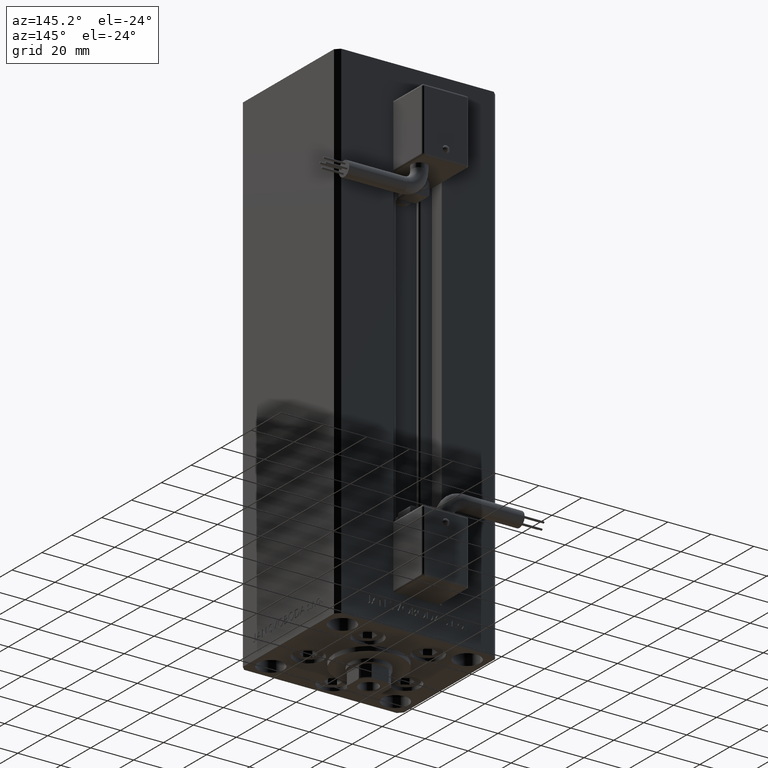
[diagram: clean part render]
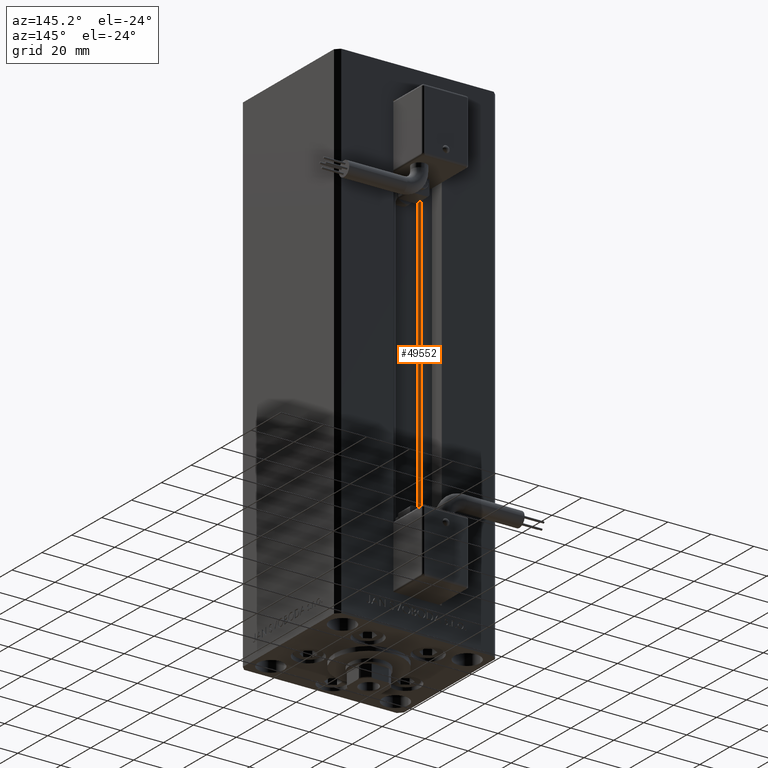
[diagram: same view with one face highlighted and labeled with its STEP entity id]
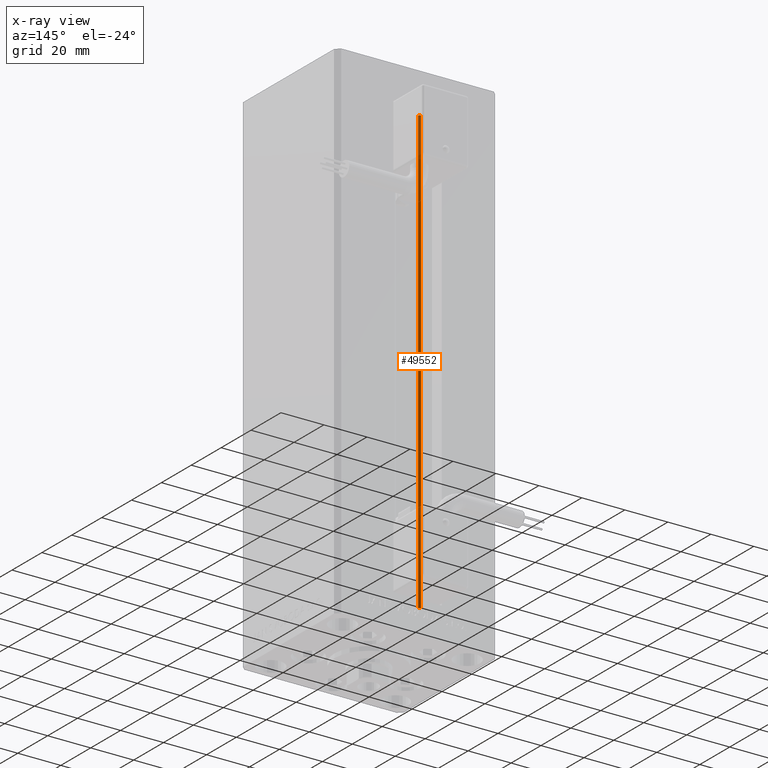
[diagram: x-ray of the same camera — body ghosted, the highlighted face saturated]
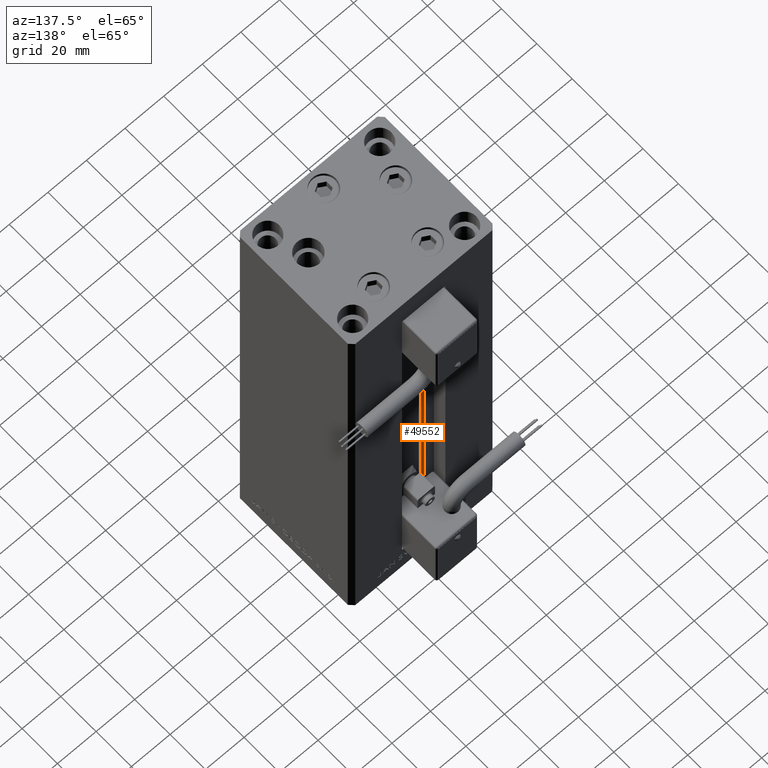
[diagram: same view with one face highlighted and labeled with its STEP entity id]
A machine part, auxiliary view. The second image highlights one B-rep face of the part: STEP entity #49552.
The next image is the same camera in x-ray: the body ghosted, the highlighted face saturated — about 13% of this face is hidden behind the body in this view.
A second angle (auxiliary view) of the same face is appended — the face is thin or edge-on in the first view.
In plain terms, the highlighted cylindrical surface (edge-blend (fillet) strip) has radius 0.9333 mm, axis along (0, 0, 1).
Its self-contained STEP definition (entity closure, byte-faithful):
#1672 = DIRECTION ( 'NONE',  ( -0.000000000000000000, -0.000000000000000000, 1.000000000000000000 ) ) ;
#2503 = DIRECTION ( 'NONE',  ( 1.000000000000000000, 0.000000000000000000, 0.000000000000000000 ) ) ;
#2633 = VERTEX_POINT ( 'NONE', #2888 ) ;
#2888 = CARTESIAN_POINT ( 'NONE',  ( -6.183333333334001480, 25.99999999999999289, 0.000000000000000000 ) ) ;
#4124 = VECTOR ( 'NONE', #42068, 1000.000000000000000 ) ;
#8800 = DIRECTION ( 'NONE',  ( -0.000000000000000000, -0.000000000000000000, 1.000000000000000000 ) ) ;
#9797 = EDGE_CURVE ( 'NONE', #2633, #40842, #17827, .T. ) ;
#9839 = DIRECTION ( 'NONE',  ( -0.000000000000000000, -0.000000000000000000, -1.000000000000000000 ) ) ;
#10555 = EDGE_CURVE ( 'NONE', #40842, #48999, #43824, .T. ) ;
#16902 = CYLINDRICAL_SURFACE ( 'NONE', #28194, 0.9333333333340008142 ) ;
#17813 = CARTESIAN_POINT ( 'NONE',  ( -6.183333333334001480, 25.99999999999999289, 0.000000000000000000 ) ) ;
#17827 = CIRCLE ( 'NONE', #47609, 0.9333333333340008142 ) ;
#17950 = DIRECTION ( 'NONE',  ( 1.000000000000000000, 0.000000000000000000, 0.000000000000000000 ) ) ;
#18067 = EDGE_CURVE ( 'NONE', #43311, #48999, #20853, .T. ) ;
#18119 = CARTESIAN_POINT ( 'NONE',  ( -6.183333333334001480, 25.06666666666599141, 0.000000000000000000 ) ) ;
#20809 = CARTESIAN_POINT ( 'NONE',  ( -5.250000000000000000, 25.06666666666599141, 0.000000000000000000 ) ) ;
#20853 = CIRCLE ( 'NONE', #23400, 0.9333333333340008142 ) ;
#23400 = AXIS2_PLACEMENT_3D ( 'NONE', #30259, #34013, #2503 ) ;
#26763 = ORIENTED_EDGE ( 'NONE', *, *, #10555, .F. ) ;
#28049 = ORIENTED_EDGE ( 'NONE', *, *, #18067, .T. ) ;
#28194 = AXIS2_PLACEMENT_3D ( 'NONE', #38224, #1672, #17950 ) ;
#30259 = CARTESIAN_POINT ( 'NONE',  ( -6.183333333334001480, 25.06666666666599141, 206.0000000000000000 ) ) ;
#30380 = DIRECTION ( 'NONE',  ( 1.000000000000000000, 0.000000000000000000, 0.000000000000000000 ) ) ;
#30855 = EDGE_CURVE ( 'NONE', #2633, #43311, #52492, .T. ) ;
#32157 = CARTESIAN_POINT ( 'NONE',  ( -5.250000000000000000, 25.06666666666599141, 0.000000000000000000 ) ) ;
#33183 = FACE_OUTER_BOUND ( 'NONE', #52297, .T. ) ;
#34013 = DIRECTION ( 'NONE',  ( 0.000000000000000000, 0.000000000000000000, -1.000000000000000000 ) ) ;
#36860 = VECTOR ( 'NONE', #8800, 1000.000000000000000 ) ;
#38224 = CARTESIAN_POINT ( 'NONE',  ( -6.183333333334001480, 25.06666666666599141, 0.000000000000000000 ) ) ;
#40076 = CARTESIAN_POINT ( 'NONE',  ( -6.183333333334001480, 25.99999999999999289, 206.0000000000000000 ) ) ;
#40842 = VERTEX_POINT ( 'NONE', #32157 ) ;
#41410 = ORIENTED_EDGE ( 'NONE', *, *, #30855, .T. ) ;
#42068 = DIRECTION ( 'NONE',  ( -0.000000000000000000, -0.000000000000000000, 1.000000000000000000 ) ) ;
#43302 = ORIENTED_EDGE ( 'NONE', *, *, #9797, .F. ) ;
#43311 = VERTEX_POINT ( 'NONE', #40076 ) ;
#43824 = LINE ( 'NONE', #20809, #36860 ) ;
#47609 = AXIS2_PLACEMENT_3D ( 'NONE', #18119, #9839, #30380 ) ;
#48999 = VERTEX_POINT ( 'NONE', #50849 ) ;
#49552 = ADVANCED_FACE ( 'NONE', ( #33183 ), #16902, .T. ) ;
#50849 = CARTESIAN_POINT ( 'NONE',  ( -5.250000000000000000, 25.06666666666599141, 206.0000000000000000 ) ) ;
#52297 = EDGE_LOOP ( 'NONE', ( #26763, #43302, #41410, #28049 ) ) ;
#52492 = LINE ( 'NONE', #17813, #4124 ) ;